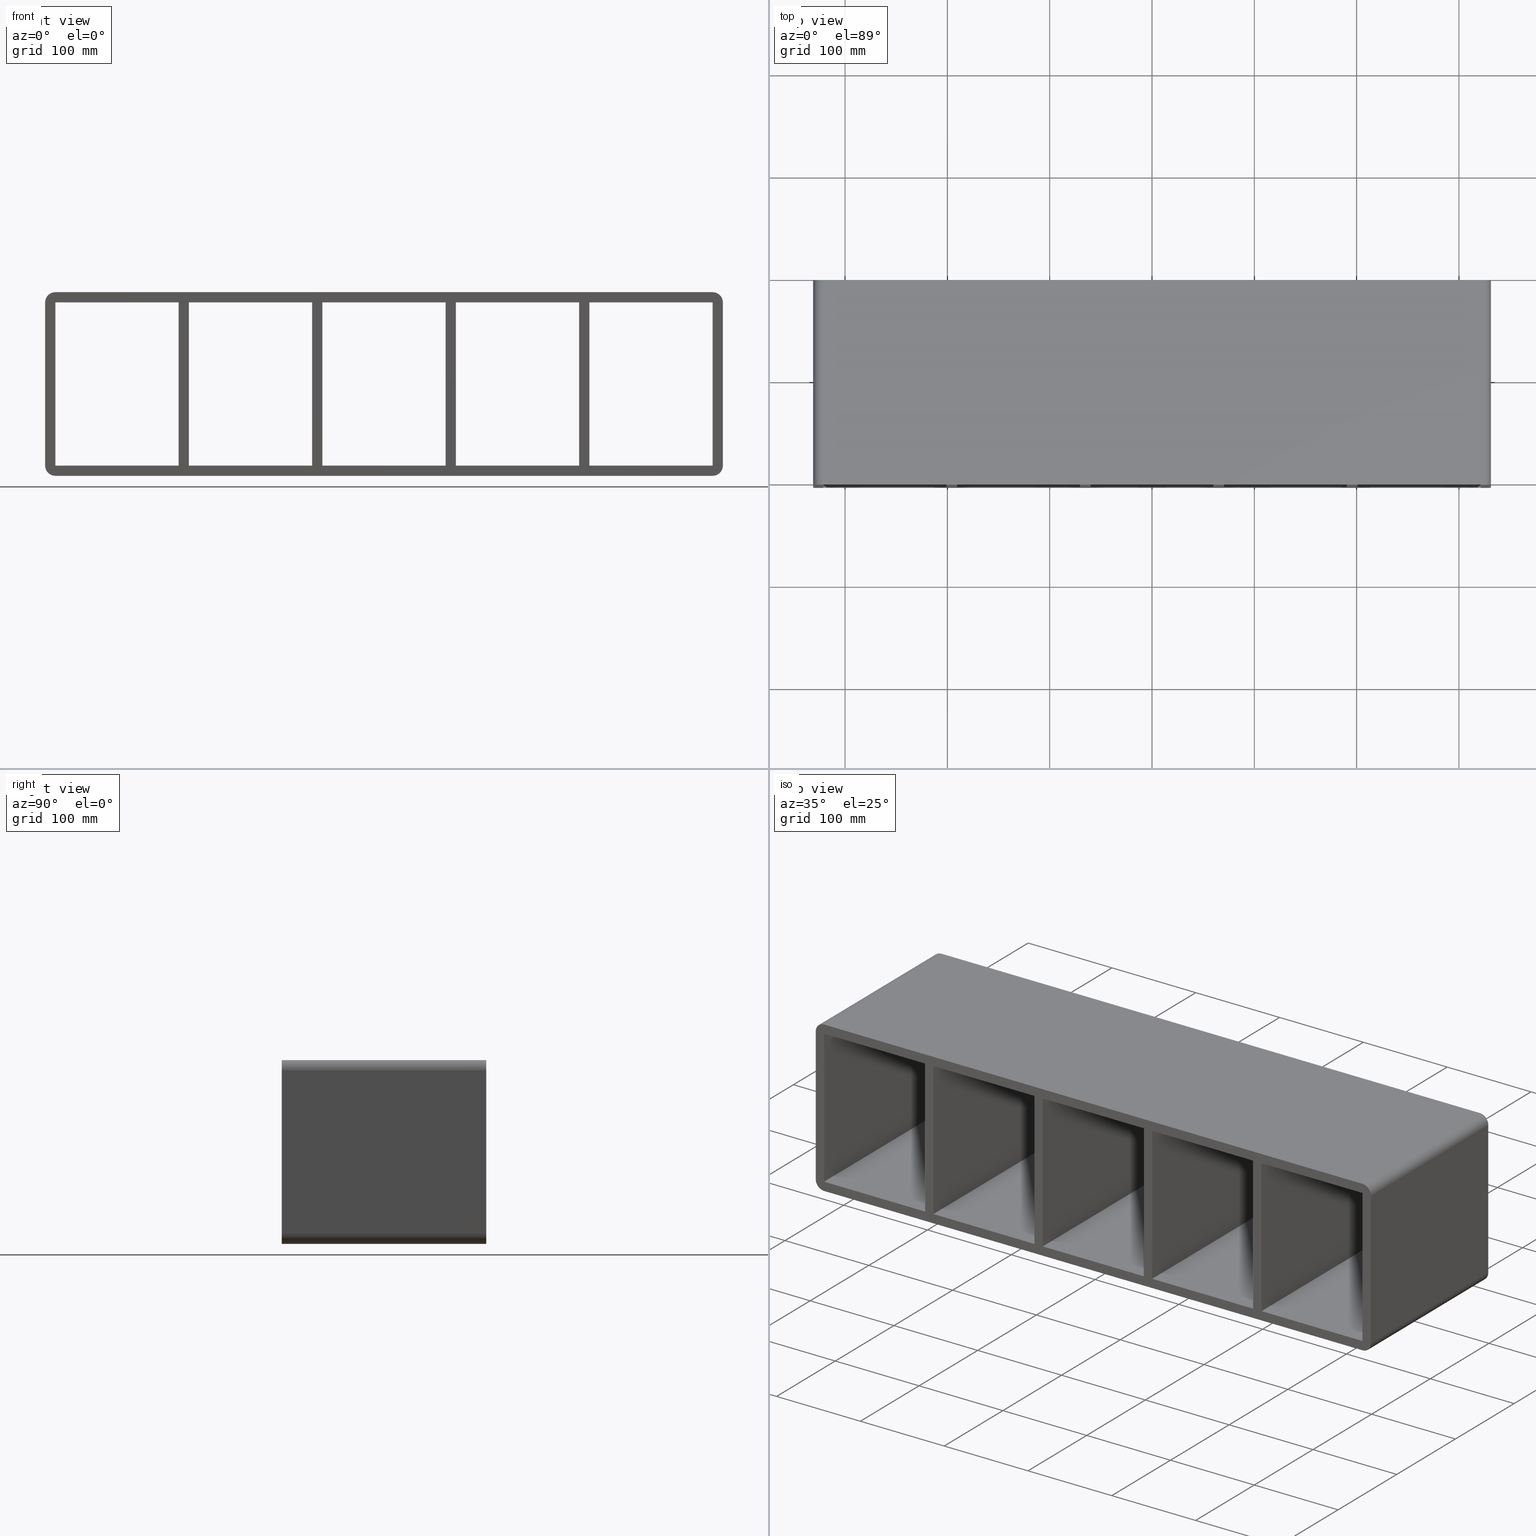
[diagram: canonical four-view strip — front | top / right | iso, engineering-drawing reading convention]
A machine part, canonical four-view strip (front | top / right | iso — engineering-drawing reading convention). The complete STEP part file that produces these views, byte-faithful:
ISO-10303-21;
HEADER;
/****************************************************************
 * Generated by software with PDElib inside                    *
 * PDElib Version v51a, created Wed 11/30/2011                  *
 * ITI Transcendata (http://www.transcendata.com/)              *
 ****************************************************************/
FILE_DESCRIPTION((''),'2;1');
FILE_NAME('C:\\RoxtecConfigurator\\CreatedFiles\\STEP\\SBTB4X5.stp','2013-02-26T13:24:52',(''),(''),'Autodesk Inventor 2013','Autodesk Inventor 2013','');
FILE_SCHEMA(('AUTOMOTIVE_DESIGN { 1 0 10303 214 1 1 1 1 }'));
ENDSEC;
DATA;
#5=APPLICATION_CONTEXT('automotive design');
#6=APPLICATION_PROTOCOL_DEFINITION('International Standard','automotive_design',2001,#5);
#7=PRODUCT_CONTEXT('',#5,'mechanical');
#8=PRODUCT('roxtec S_SF_G','roxtec S_SF_G',$,(#7));
#9=PRODUCT_RELATED_PRODUCT_CATEGORY('part',$,(#8));
#10=PRODUCT_DEFINITION_FORMATION('',$,#8);
#11=PRODUCT_DEFINITION_CONTEXT('part definition',#5,'design');
#12=PRODUCT_DEFINITION('',$,#10,#11);
#18=(NAMED_UNIT(*)PLANE_ANGLE_UNIT()SI_UNIT($,.RADIAN.));
#19=DIMENSIONAL_EXPONENTS(0.0,0.0,0.0,0.0,0.0,0.0,0.0);
#20=PLANE_ANGLE_MEASURE_WITH_UNIT(PLANE_ANGLE_MEASURE(0.0174532925),#18);
#24=(CONVERSION_BASED_UNIT('DEGREE',#20)NAMED_UNIT(#19)PLANE_ANGLE_UNIT());
#28=(NAMED_UNIT(*)SI_UNIT($,.STERADIAN.)SOLID_ANGLE_UNIT());
#32=(LENGTH_UNIT()NAMED_UNIT(*)SI_UNIT(.MILLI.,.METRE.));
#34=UNCERTAINTY_MEASURE_WITH_UNIT(LENGTH_MEASURE(0.01),#32,'DISTANCE_ACCURACY_VALUE','');
#36=(GEOMETRIC_REPRESENTATION_CONTEXT(3)GLOBAL_UNCERTAINTY_ASSIGNED_CONTEXT((#34))GLOBAL_UNIT_ASSIGNED_CONTEXT((#24,#28,#32))REPRESENTATION_CONTEXT('None','None'));
#37=AXIS2_PLACEMENT_3D('',#38,#39,#40);
#38=CARTESIAN_POINT('',(0.0,0.0,0.0));
#39=DIRECTION('',(0.0,0.0,1.0));
#40=DIRECTION('',(1.0,0.0,0.0));
#41=SHAPE_REPRESENTATION('',(#37),#36);
#42=PRODUCT_DEFINITION_SHAPE('','',#12);
#43=SHAPE_DEFINITION_REPRESENTATION(#42,#41);
#49=(NAMED_UNIT(*)PLANE_ANGLE_UNIT()SI_UNIT($,.RADIAN.));
#50=DIMENSIONAL_EXPONENTS(0.0,0.0,0.0,0.0,0.0,0.0,0.0);
#51=PLANE_ANGLE_MEASURE_WITH_UNIT(PLANE_ANGLE_MEASURE(0.0174532925),#49);
#55=(CONVERSION_BASED_UNIT('DEGREE',#51)NAMED_UNIT(#50)PLANE_ANGLE_UNIT());
#59=(NAMED_UNIT(*)SI_UNIT($,.STERADIAN.)SOLID_ANGLE_UNIT());
#63=(LENGTH_UNIT()NAMED_UNIT(*)SI_UNIT(.MILLI.,.METRE.));
#65=UNCERTAINTY_MEASURE_WITH_UNIT(LENGTH_MEASURE(0.000001),#63,'DISTANCE_ACCURACY_VALUE','');
#67=(GEOMETRIC_REPRESENTATION_CONTEXT(3)GLOBAL_UNCERTAINTY_ASSIGNED_CONTEXT((#65))GLOBAL_UNIT_ASSIGNED_CONTEXT((#55,#59,#63))REPRESENTATION_CONTEXT('','3D'));
#68=CARTESIAN_POINT('',(190.74999999999881,-3.0,-79.750000000000014));
#69=DIRECTION('',(-1.0,0.0,0.0));
#70=DIRECTION('',(0.0,0.0,1.0));
#71=AXIS2_PLACEMENT_3D('',#68,#69,#70);
#72=PLANE('',#71);
#73=CARTESIAN_POINT('',(190.74999999999881,-3.0,-79.750000000000014));
#74=VERTEX_POINT('',#73);
#75=CARTESIAN_POINT('',(190.74999999999881,-3.0,79.750000000000014));
#76=VERTEX_POINT('',#75);
#77=CARTESIAN_POINT('',(190.74999999999881,-3.0,-79.750000000000014));
#78=DIRECTION('',(0.0,0.0,1.0));
#79=VECTOR('',#78,159.50000000000003);
#80=LINE('',#77,#79);
#81=EDGE_CURVE('',#74,#76,#80,.T.);
#82=ORIENTED_EDGE('',*,*,#81,.T.);
#83=CARTESIAN_POINT('',(190.74999999999881,197.0,79.750000000000014));
#84=VERTEX_POINT('',#83);
#85=CARTESIAN_POINT('',(190.74999999999881,196.99999999999997,79.750000000000014));
#86=DIRECTION('',(0.0,-1.0,0.0));
#87=VECTOR('',#86,199.99999999999997);
#88=LINE('',#85,#87);
#89=EDGE_CURVE('',#84,#76,#88,.T.);
#90=ORIENTED_EDGE('',*,*,#89,.F.);
#91=CARTESIAN_POINT('',(190.74999999999881,197.0,-79.750000000000014));
#92=VERTEX_POINT('',#91);
#93=CARTESIAN_POINT('',(190.74999999999881,197.0,-79.750000000000014));
#94=DIRECTION('',(0.0,0.0,1.0));
#95=VECTOR('',#94,159.50000000000003);
#96=LINE('',#93,#95);
#97=EDGE_CURVE('',#92,#84,#96,.T.);
#98=ORIENTED_EDGE('',*,*,#97,.F.);
#99=CARTESIAN_POINT('',(190.74999999999881,-3.0,-79.750000000000014));
#100=DIRECTION('',(0.0,1.0,0.0));
#101=VECTOR('',#100,199.99999999999997);
#102=LINE('',#99,#101);
#103=EDGE_CURVE('',#74,#92,#102,.T.);
#104=ORIENTED_EDGE('',*,*,#103,.F.);
#105=EDGE_LOOP('',(#82,#90,#98,#104));
#106=FACE_OUTER_BOUND('',#105,.T.);
#107=ADVANCED_FACE('',(#106),#72,.T.);
#108=CARTESIAN_POINT('',(200.74999999999278,-3.0,79.750000000000014));
#109=DIRECTION('',(1.0,0.0,0.0));
#110=DIRECTION('',(0.0,0.0,-1.0));
#111=AXIS2_PLACEMENT_3D('',#108,#109,#110);
#112=PLANE('',#111);
#113=CARTESIAN_POINT('',(200.74999999999278,-3.0,79.750000000000014));
#114=VERTEX_POINT('',#113);
#115=CARTESIAN_POINT('',(200.74999999999278,-3.0,-79.749999999971479));
#116=VERTEX_POINT('',#115);
#117=CARTESIAN_POINT('',(200.74999999999278,-3.0,79.750000000000014));
#118=DIRECTION('',(0.0,0.0,-1.0));
#119=VECTOR('',#118,159.49999999997149);
#120=LINE('',#117,#119);
#121=EDGE_CURVE('',#114,#116,#120,.T.);
#122=ORIENTED_EDGE('',*,*,#121,.T.);
#123=CARTESIAN_POINT('',(200.74999999999278,197.0,-79.749999999971493));
#124=VERTEX_POINT('',#123);
#125=CARTESIAN_POINT('',(200.74999999999278,196.99999999999997,-79.750000000000014));
#126=DIRECTION('',(0.0,-1.0,0.0));
#127=VECTOR('',#126,199.99999999999997);
#128=LINE('',#125,#127);
#129=EDGE_CURVE('',#124,#116,#128,.T.);
#130=ORIENTED_EDGE('',*,*,#129,.F.);
#131=CARTESIAN_POINT('',(200.74999999999278,197.0,79.750000000000014));
#132=VERTEX_POINT('',#131);
#133=CARTESIAN_POINT('',(200.74999999999278,197.0,79.750000000000014));
#134=DIRECTION('',(0.0,0.0,-1.0));
#135=VECTOR('',#134,159.49999999997149);
#136=LINE('',#133,#135);
#137=EDGE_CURVE('',#132,#124,#136,.T.);
#138=ORIENTED_EDGE('',*,*,#137,.F.);
#139=CARTESIAN_POINT('',(200.74999999999278,-3.0,79.750000000000014));
#140=DIRECTION('',(0.0,1.0,0.0));
#141=VECTOR('',#140,199.99999999999997);
#142=LINE('',#139,#141);
#143=EDGE_CURVE('',#114,#132,#142,.T.);
#144=ORIENTED_EDGE('',*,*,#143,.F.);
#145=EDGE_LOOP('',(#122,#130,#138,#144));
#146=FACE_OUTER_BOUND('',#145,.T.);
#147=ADVANCED_FACE('',(#146),#112,.T.);
#148=CARTESIAN_POINT('',(60.249999999998778,-3.0,-79.750000000000014));
#149=DIRECTION('',(-1.0,0.0,0.0));
#150=DIRECTION('',(0.0,0.0,1.0));
#151=AXIS2_PLACEMENT_3D('',#148,#149,#150);
#152=PLANE('',#151);
#153=CARTESIAN_POINT('',(60.249999999998778,-3.0,-79.750000000000014));
#154=VERTEX_POINT('',#153);
#155=CARTESIAN_POINT('',(60.249999999998778,-3.0,79.750000000000014));
#156=VERTEX_POINT('',#155);
#157=CARTESIAN_POINT('',(60.249999999998778,-3.0,-79.750000000000014));
#158=DIRECTION('',(0.0,0.0,1.0));
#159=VECTOR('',#158,159.50000000000003);
#160=LINE('',#157,#159);
#161=EDGE_CURVE('',#154,#156,#160,.T.);
#162=ORIENTED_EDGE('',*,*,#161,.T.);
#163=CARTESIAN_POINT('',(60.249999999998778,197.0,79.750000000000014));
#164=VERTEX_POINT('',#163);
#165=CARTESIAN_POINT('',(60.249999999998778,196.99999999999997,79.750000000000014));
#166=DIRECTION('',(0.0,-1.0,0.0));
#167=VECTOR('',#166,199.99999999999997);
#168=LINE('',#165,#167);
#169=EDGE_CURVE('',#164,#156,#168,.T.);
#170=ORIENTED_EDGE('',*,*,#169,.F.);
#171=CARTESIAN_POINT('',(60.249999999998778,197.0,-79.750000000000014));
#172=VERTEX_POINT('',#171);
#173=CARTESIAN_POINT('',(60.249999999998778,197.0,-79.750000000000014));
#174=DIRECTION('',(0.0,0.0,1.0));
#175=VECTOR('',#174,159.50000000000003);
#176=LINE('',#173,#175);
#177=EDGE_CURVE('',#172,#164,#176,.T.);
#178=ORIENTED_EDGE('',*,*,#177,.F.);
#179=CARTESIAN_POINT('',(60.249999999998778,-3.0,-79.750000000000014));
#180=DIRECTION('',(0.0,1.0,0.0));
#181=VECTOR('',#180,199.99999999999997);
#182=LINE('',#179,#181);
#183=EDGE_CURVE('',#154,#172,#182,.T.);
#184=ORIENTED_EDGE('',*,*,#183,.F.);
#185=EDGE_LOOP('',(#162,#170,#178,#184));
#186=FACE_OUTER_BOUND('',#185,.T.);
#187=ADVANCED_FACE('',(#186),#152,.T.);
#188=CARTESIAN_POINT('',(70.249999999992738,-3.0,79.750000000000014));
#189=DIRECTION('',(1.0,0.0,0.0));
#190=DIRECTION('',(0.0,0.0,-1.0));
#191=AXIS2_PLACEMENT_3D('',#188,#189,#190);
#192=PLANE('',#191);
#193=CARTESIAN_POINT('',(70.249999999992738,-3.0,79.750000000000014));
#194=VERTEX_POINT('',#193);
#195=CARTESIAN_POINT('',(70.249999999992738,-3.0,-79.749999999971479));
#196=VERTEX_POINT('',#195);
#197=CARTESIAN_POINT('',(70.249999999992738,-3.0,79.750000000000014));
#198=DIRECTION('',(0.0,0.0,-1.0));
#199=VECTOR('',#198,159.49999999997149);
#200=LINE('',#197,#199);
#201=EDGE_CURVE('',#194,#196,#200,.T.);
#202=ORIENTED_EDGE('',*,*,#201,.T.);
#203=CARTESIAN_POINT('',(70.249999999992738,197.0,-79.749999999971493));
#204=VERTEX_POINT('',#203);
#205=CARTESIAN_POINT('',(70.249999999992738,196.99999999999997,-79.750000000000014));
#206=DIRECTION('',(0.0,-1.0,0.0));
#207=VECTOR('',#206,199.99999999999997);
#208=LINE('',#205,#207);
#209=EDGE_CURVE('',#204,#196,#208,.T.);
#210=ORIENTED_EDGE('',*,*,#209,.F.);
#211=CARTESIAN_POINT('',(70.249999999992738,197.0,79.750000000000014));
#212=VERTEX_POINT('',#211);
#213=CARTESIAN_POINT('',(70.249999999992738,197.0,79.750000000000014));
#214=DIRECTION('',(0.0,0.0,-1.0));
#215=VECTOR('',#214,159.49999999997149);
#216=LINE('',#213,#215);
#217=EDGE_CURVE('',#212,#204,#216,.T.);
#218=ORIENTED_EDGE('',*,*,#217,.F.);
#219=CARTESIAN_POINT('',(70.249999999992738,-3.0,79.750000000000014));
#220=DIRECTION('',(0.0,1.0,0.0));
#221=VECTOR('',#220,199.99999999999997);
#222=LINE('',#219,#221);
#223=EDGE_CURVE('',#194,#212,#222,.T.);
#224=ORIENTED_EDGE('',*,*,#223,.F.);
#225=EDGE_LOOP('',(#202,#210,#218,#224));
#226=FACE_OUTER_BOUND('',#225,.T.);
#227=ADVANCED_FACE('',(#226),#192,.T.);
#228=CARTESIAN_POINT('',(-70.250000000001222,-3.0,-79.750000000000014));
#229=DIRECTION('',(-1.0,0.0,0.0));
#230=DIRECTION('',(0.0,0.0,1.0));
#231=AXIS2_PLACEMENT_3D('',#228,#229,#230);
#232=PLANE('',#231);
#233=CARTESIAN_POINT('',(-70.250000000001222,-3.0,-79.750000000000014));
#234=VERTEX_POINT('',#233);
#235=CARTESIAN_POINT('',(-70.250000000001222,-3.0,79.750000000000014));
#236=VERTEX_POINT('',#235);
#237=CARTESIAN_POINT('',(-70.250000000001222,-3.0,-79.750000000000014));
#238=DIRECTION('',(0.0,0.0,1.0));
#239=VECTOR('',#238,159.50000000000003);
#240=LINE('',#237,#239);
#241=EDGE_CURVE('',#234,#236,#240,.T.);
#242=ORIENTED_EDGE('',*,*,#241,.T.);
#243=CARTESIAN_POINT('',(-70.250000000001222,197.0,79.750000000000014));
#244=VERTEX_POINT('',#243);
#245=CARTESIAN_POINT('',(-70.250000000001208,196.99999999999997,79.750000000000014));
#246=DIRECTION('',(0.0,-1.0,0.0));
#247=VECTOR('',#246,199.99999999999997);
#248=LINE('',#245,#247);
#249=EDGE_CURVE('',#244,#236,#248,.T.);
#250=ORIENTED_EDGE('',*,*,#249,.F.);
#251=CARTESIAN_POINT('',(-70.250000000001222,197.0,-79.750000000000014));
#252=VERTEX_POINT('',#251);
#253=CARTESIAN_POINT('',(-70.250000000001222,197.0,-79.750000000000014));
#254=DIRECTION('',(0.0,0.0,1.0));
#255=VECTOR('',#254,159.50000000000003);
#256=LINE('',#253,#255);
#257=EDGE_CURVE('',#252,#244,#256,.T.);
#258=ORIENTED_EDGE('',*,*,#257,.F.);
#259=CARTESIAN_POINT('',(-70.250000000001208,-3.0,-79.750000000000014));
#260=DIRECTION('',(0.0,1.0,0.0));
#261=VECTOR('',#260,199.99999999999997);
#262=LINE('',#259,#261);
#263=EDGE_CURVE('',#234,#252,#262,.T.);
#264=ORIENTED_EDGE('',*,*,#263,.F.);
#265=EDGE_LOOP('',(#242,#250,#258,#264));
#266=FACE_OUTER_BOUND('',#265,.T.);
#267=ADVANCED_FACE('',(#266),#232,.T.);
#268=CARTESIAN_POINT('',(-60.250000000007269,-3.0,79.750000000000014));
#269=DIRECTION('',(1.0,0.0,0.0));
#270=DIRECTION('',(0.0,0.0,-1.0));
#271=AXIS2_PLACEMENT_3D('',#268,#269,#270);
#272=PLANE('',#271);
#273=CARTESIAN_POINT('',(-60.250000000007269,-3.0,79.750000000000014));
#274=VERTEX_POINT('',#273);
#275=CARTESIAN_POINT('',(-60.250000000007269,-3.0,-79.749999999971479));
#276=VERTEX_POINT('',#275);
#277=CARTESIAN_POINT('',(-60.250000000007269,-3.0,79.750000000000014));
#278=DIRECTION('',(0.0,0.0,-1.0));
#279=VECTOR('',#278,159.49999999997149);
#280=LINE('',#277,#279);
#281=EDGE_CURVE('',#274,#276,#280,.T.);
#282=ORIENTED_EDGE('',*,*,#281,.T.);
#283=CARTESIAN_POINT('',(-60.250000000007269,197.0,-79.749999999971493));
#284=VERTEX_POINT('',#283);
#285=CARTESIAN_POINT('',(-60.25000000000729,196.99999999999997,-79.750000000000014));
#286=DIRECTION('',(0.0,-1.0,0.0));
#287=VECTOR('',#286,199.99999999999997);
#288=LINE('',#285,#287);
#289=EDGE_CURVE('',#284,#276,#288,.T.);
#290=ORIENTED_EDGE('',*,*,#289,.F.);
#291=CARTESIAN_POINT('',(-60.250000000007269,197.0,79.750000000000014));
#292=VERTEX_POINT('',#291);
#293=CARTESIAN_POINT('',(-60.250000000007269,197.0,79.750000000000014));
#294=DIRECTION('',(0.0,0.0,-1.0));
#295=VECTOR('',#294,159.49999999997149);
#296=LINE('',#293,#295);
#297=EDGE_CURVE('',#292,#284,#296,.T.);
#298=ORIENTED_EDGE('',*,*,#297,.F.);
#299=CARTESIAN_POINT('',(-60.25000000000729,-3.0,79.750000000000014));
#300=DIRECTION('',(0.0,1.0,0.0));
#301=VECTOR('',#300,199.99999999999997);
#302=LINE('',#299,#301);
#303=EDGE_CURVE('',#274,#292,#302,.T.);
#304=ORIENTED_EDGE('',*,*,#303,.F.);
#305=EDGE_LOOP('',(#282,#290,#298,#304));
#306=FACE_OUTER_BOUND('',#305,.T.);
#307=ADVANCED_FACE('',(#306),#272,.T.);
#308=CARTESIAN_POINT('',(321.25,0.0,-79.750000000000014));
#309=DIRECTION('',(0.0,0.0,-1.0));
#310=DIRECTION('',(-1.0,0.0,0.0));
#311=AXIS2_PLACEMENT_3D('',#308,#309,#310);
#312=PLANE('',#311);
#313=ORIENTED_EDGE('',*,*,#263,.T.);
#314=CARTESIAN_POINT('',(-190.75000000000728,197.0,-79.749999999971493));
#315=VERTEX_POINT('',#314);
#316=CARTESIAN_POINT('',(-190.75000000000728,197.0,-79.750000000000014));
#317=DIRECTION('',(1.0,0.0,0.0));
#318=VECTOR('',#317,120.50000000000605);
#319=LINE('',#316,#318);
#320=EDGE_CURVE('',#315,#252,#319,.T.);
#321=ORIENTED_EDGE('',*,*,#320,.F.);
#322=CARTESIAN_POINT('',(-190.75000000000728,-3.0,-79.749999999971479));
#323=VERTEX_POINT('',#322);
#324=CARTESIAN_POINT('',(-190.75000000000728,196.99999999999997,-79.750000000000014));
#325=DIRECTION('',(0.0,-1.0,0.0));
#326=VECTOR('',#325,199.99999999999997);
#327=LINE('',#324,#326);
#328=EDGE_CURVE('',#315,#323,#327,.T.);
#329=ORIENTED_EDGE('',*,*,#328,.T.);
#330=CARTESIAN_POINT('',(-70.250000000001222,-3.0,-79.750000000000014));
#331=DIRECTION('',(-1.0,0.0,0.0));
#332=VECTOR('',#331,120.50000000000605);
#333=LINE('',#330,#332);
#334=EDGE_CURVE('',#234,#323,#333,.T.);
#335=ORIENTED_EDGE('',*,*,#334,.F.);
#336=EDGE_LOOP('',(#313,#321,#329,#335));
#337=FACE_OUTER_BOUND('',#336,.T.);
#338=ADVANCED_FACE('',(#337),#312,.F.);
#339=CARTESIAN_POINT('',(321.25,0.0,-79.750000000000014));
#340=DIRECTION('',(0.0,0.0,-1.0));
#341=DIRECTION('',(-1.0,0.0,0.0));
#342=AXIS2_PLACEMENT_3D('',#339,#340,#341);
#343=PLANE('',#342);
#344=ORIENTED_EDGE('',*,*,#183,.T.);
#345=CARTESIAN_POINT('',(-60.250000000007276,197.0,-79.750000000000014));
#346=DIRECTION('',(1.0,0.0,0.0));
#347=VECTOR('',#346,120.50000000000605);
#348=LINE('',#345,#347);
#349=EDGE_CURVE('',#284,#172,#348,.T.);
#350=ORIENTED_EDGE('',*,*,#349,.F.);
#351=ORIENTED_EDGE('',*,*,#289,.T.);
#352=CARTESIAN_POINT('',(60.249999999998778,-3.0,-79.750000000000014));
#353=DIRECTION('',(-1.0,0.0,0.0));
#354=VECTOR('',#353,120.50000000000605);
#355=LINE('',#352,#354);
#356=EDGE_CURVE('',#154,#276,#355,.T.);
#357=ORIENTED_EDGE('',*,*,#356,.F.);
#358=EDGE_LOOP('',(#344,#350,#351,#357));
#359=FACE_OUTER_BOUND('',#358,.T.);
#360=ADVANCED_FACE('',(#359),#343,.F.);
#361=CARTESIAN_POINT('',(321.25,0.0,-79.750000000000014));
#362=DIRECTION('',(0.0,0.0,-1.0));
#363=DIRECTION('',(-1.0,0.0,0.0));
#364=AXIS2_PLACEMENT_3D('',#361,#362,#363);
#365=PLANE('',#364);
#366=ORIENTED_EDGE('',*,*,#103,.T.);
#367=CARTESIAN_POINT('',(70.249999999992738,197.0,-79.750000000000014));
#368=DIRECTION('',(1.0,0.0,0.0));
#369=VECTOR('',#368,120.50000000000607);
#370=LINE('',#367,#369);
#371=EDGE_CURVE('',#204,#92,#370,.T.);
#372=ORIENTED_EDGE('',*,*,#371,.F.);
#373=ORIENTED_EDGE('',*,*,#209,.T.);
#374=CARTESIAN_POINT('',(190.74999999999881,-3.0,-79.750000000000014));
#375=DIRECTION('',(-1.0,0.0,0.0));
#376=VECTOR('',#375,120.50000000000607);
#377=LINE('',#374,#376);
#378=EDGE_CURVE('',#74,#196,#377,.T.);
#379=ORIENTED_EDGE('',*,*,#378,.F.);
#380=EDGE_LOOP('',(#366,#372,#373,#379));
#381=FACE_OUTER_BOUND('',#380,.T.);
#382=ADVANCED_FACE('',(#381),#365,.F.);
#383=CARTESIAN_POINT('',(321.25,0.0,-79.750000000000014));
#384=DIRECTION('',(0.0,0.0,-1.0));
#385=DIRECTION('',(-1.0,0.0,0.0));
#386=AXIS2_PLACEMENT_3D('',#383,#384,#385);
#387=PLANE('',#386);
#388=ORIENTED_EDGE('',*,*,#129,.T.);
#389=CARTESIAN_POINT('',(321.25,-3.0,-79.750000000000014));
#390=VERTEX_POINT('',#389);
#391=CARTESIAN_POINT('',(321.25,-3.0,-79.750000000000014));
#392=DIRECTION('',(-1.0,0.0,0.0));
#393=VECTOR('',#392,120.50000000000722);
#394=LINE('',#391,#393);
#395=EDGE_CURVE('',#390,#116,#394,.T.);
#396=ORIENTED_EDGE('',*,*,#395,.F.);
#397=CARTESIAN_POINT('',(321.25,197.0,-79.750000000000014));
#398=VERTEX_POINT('',#397);
#399=CARTESIAN_POINT('',(321.25,197.0,-79.750000000000014));
#400=DIRECTION('',(0.0,-1.0,0.0));
#401=VECTOR('',#400,200.0);
#402=LINE('',#399,#401);
#403=EDGE_CURVE('',#398,#390,#402,.T.);
#404=ORIENTED_EDGE('',*,*,#403,.F.);
#405=CARTESIAN_POINT('',(200.74999999999278,197.0,-79.750000000000014));
#406=DIRECTION('',(1.0,0.0,0.0));
#407=VECTOR('',#406,120.50000000000722);
#408=LINE('',#405,#407);
#409=EDGE_CURVE('',#124,#398,#408,.T.);
#410=ORIENTED_EDGE('',*,*,#409,.F.);
#411=EDGE_LOOP('',(#388,#396,#404,#410));
#412=FACE_OUTER_BOUND('',#411,.T.);
#413=ADVANCED_FACE('',(#412),#387,.F.);
#414=CARTESIAN_POINT('',(-321.25,0.0,79.750000000000014));
#415=DIRECTION('',(0.0,0.0,1.0));
#416=DIRECTION('',(1.0,0.0,0.0));
#417=AXIS2_PLACEMENT_3D('',#414,#415,#416);
#418=PLANE('',#417);
#419=ORIENTED_EDGE('',*,*,#249,.T.);
#420=CARTESIAN_POINT('',(-190.75000000000728,-3.0,79.750000000000014));
#421=VERTEX_POINT('',#420);
#422=CARTESIAN_POINT('',(-190.75000000000728,-3.0,79.750000000000014));
#423=DIRECTION('',(1.0,0.0,0.0));
#424=VECTOR('',#423,120.50000000000605);
#425=LINE('',#422,#424);
#426=EDGE_CURVE('',#421,#236,#425,.T.);
#427=ORIENTED_EDGE('',*,*,#426,.F.);
#428=CARTESIAN_POINT('',(-190.75000000000728,197.0,79.750000000000014));
#429=VERTEX_POINT('',#428);
#430=CARTESIAN_POINT('',(-190.75000000000728,-3.0,79.750000000000014));
#431=DIRECTION('',(0.0,1.0,0.0));
#432=VECTOR('',#431,199.99999999999997);
#433=LINE('',#430,#432);
#434=EDGE_CURVE('',#421,#429,#433,.T.);
#435=ORIENTED_EDGE('',*,*,#434,.T.);
#436=CARTESIAN_POINT('',(-70.250000000001222,197.0,79.750000000000014));
#437=DIRECTION('',(-1.0,0.0,0.0));
#438=VECTOR('',#437,120.50000000000605);
#439=LINE('',#436,#438);
#440=EDGE_CURVE('',#244,#429,#439,.T.);
#441=ORIENTED_EDGE('',*,*,#440,.F.);
#442=EDGE_LOOP('',(#419,#427,#435,#441));
#443=FACE_OUTER_BOUND('',#442,.T.);
#444=ADVANCED_FACE('',(#443),#418,.F.);
#445=CARTESIAN_POINT('',(-321.25,0.0,79.750000000000014));
#446=DIRECTION('',(0.0,0.0,1.0));
#447=DIRECTION('',(1.0,0.0,0.0));
#448=AXIS2_PLACEMENT_3D('',#445,#446,#447);
#449=PLANE('',#448);
#450=ORIENTED_EDGE('',*,*,#169,.T.);
#451=CARTESIAN_POINT('',(-60.250000000007276,-3.0,79.750000000000014));
#452=DIRECTION('',(1.0,0.0,0.0));
#453=VECTOR('',#452,120.50000000000605);
#454=LINE('',#451,#453);
#455=EDGE_CURVE('',#274,#156,#454,.T.);
#456=ORIENTED_EDGE('',*,*,#455,.F.);
#457=ORIENTED_EDGE('',*,*,#303,.T.);
#458=CARTESIAN_POINT('',(60.249999999998778,197.0,79.750000000000014));
#459=DIRECTION('',(-1.0,0.0,0.0));
#460=VECTOR('',#459,120.50000000000605);
#461=LINE('',#458,#460);
#462=EDGE_CURVE('',#164,#292,#461,.T.);
#463=ORIENTED_EDGE('',*,*,#462,.F.);
#464=EDGE_LOOP('',(#450,#456,#457,#463));
#465=FACE_OUTER_BOUND('',#464,.T.);
#466=ADVANCED_FACE('',(#465),#449,.F.);
#467=CARTESIAN_POINT('',(-321.25,0.0,79.750000000000014));
#468=DIRECTION('',(0.0,0.0,1.0));
#469=DIRECTION('',(1.0,0.0,0.0));
#470=AXIS2_PLACEMENT_3D('',#467,#468,#469);
#471=PLANE('',#470);
#472=ORIENTED_EDGE('',*,*,#143,.T.);
#473=CARTESIAN_POINT('',(321.25,197.0,79.750000000000014));
#474=VERTEX_POINT('',#473);
#475=CARTESIAN_POINT('',(321.25,197.0,79.750000000000014));
#476=DIRECTION('',(-1.0,0.0,0.0));
#477=VECTOR('',#476,120.50000000000722);
#478=LINE('',#475,#477);
#479=EDGE_CURVE('',#474,#132,#478,.T.);
#480=ORIENTED_EDGE('',*,*,#479,.F.);
#481=CARTESIAN_POINT('',(321.25,-3.0,79.750000000000014));
#482=VERTEX_POINT('',#481);
#483=CARTESIAN_POINT('',(321.25,-3.0,79.750000000000014));
#484=DIRECTION('',(0.0,1.0,0.0));
#485=VECTOR('',#484,200.0);
#486=LINE('',#483,#485);
#487=EDGE_CURVE('',#482,#474,#486,.T.);
#488=ORIENTED_EDGE('',*,*,#487,.F.);
#489=CARTESIAN_POINT('',(200.74999999999278,-3.0,79.750000000000014));
#490=DIRECTION('',(1.0,0.0,0.0));
#491=VECTOR('',#490,120.50000000000722);
#492=LINE('',#489,#491);
#493=EDGE_CURVE('',#114,#482,#492,.T.);
#494=ORIENTED_EDGE('',*,*,#493,.F.);
#495=EDGE_LOOP('',(#472,#480,#488,#494));
#496=FACE_OUTER_BOUND('',#495,.T.);
#497=ADVANCED_FACE('',(#496),#471,.F.);
#498=CARTESIAN_POINT('',(-321.25,0.0,79.750000000000014));
#499=DIRECTION('',(0.0,0.0,1.0));
#500=DIRECTION('',(1.0,0.0,0.0));
#501=AXIS2_PLACEMENT_3D('',#498,#499,#500);
#502=PLANE('',#501);
#503=ORIENTED_EDGE('',*,*,#89,.T.);
#504=CARTESIAN_POINT('',(70.249999999992724,-3.0,79.750000000000014));
#505=DIRECTION('',(1.0,0.0,0.0));
#506=VECTOR('',#505,120.50000000000608);
#507=LINE('',#504,#506);
#508=EDGE_CURVE('',#194,#76,#507,.T.);
#509=ORIENTED_EDGE('',*,*,#508,.F.);
#510=ORIENTED_EDGE('',*,*,#223,.T.);
#511=CARTESIAN_POINT('',(190.74999999999881,197.0,79.750000000000014));
#512=DIRECTION('',(-1.0,0.0,0.0));
#513=VECTOR('',#512,120.50000000000608);
#514=LINE('',#511,#513);
#515=EDGE_CURVE('',#84,#212,#514,.T.);
#516=ORIENTED_EDGE('',*,*,#515,.F.);
#517=EDGE_LOOP('',(#503,#509,#510,#516));
#518=FACE_OUTER_BOUND('',#517,.T.);
#519=ADVANCED_FACE('',(#518),#502,.F.);
#520=CARTESIAN_POINT('',(-200.75000000000125,-3.0,-79.750000000000014));
#521=DIRECTION('',(-1.0,0.0,0.0));
#522=DIRECTION('',(0.0,0.0,1.0));
#523=AXIS2_PLACEMENT_3D('',#520,#521,#522);
#524=PLANE('',#523);
#525=CARTESIAN_POINT('',(-200.75000000000125,-3.0,-79.750000000000014));
#526=VERTEX_POINT('',#525);
#527=CARTESIAN_POINT('',(-200.75000000000125,-3.0,79.750000000000014));
#528=VERTEX_POINT('',#527);
#529=CARTESIAN_POINT('',(-200.75000000000125,-3.0,-79.750000000000014));
#530=DIRECTION('',(0.0,0.0,1.0));
#531=VECTOR('',#530,159.50000000000003);
#532=LINE('',#529,#531);
#533=EDGE_CURVE('',#526,#528,#532,.T.);
#534=ORIENTED_EDGE('',*,*,#533,.T.);
#535=CARTESIAN_POINT('',(-200.75000000000125,197.0,79.750000000000014));
#536=VERTEX_POINT('',#535);
#537=CARTESIAN_POINT('',(-200.75000000000125,196.99999999999997,79.750000000000014));
#538=DIRECTION('',(0.0,-1.0,0.0));
#539=VECTOR('',#538,199.99999999999997);
#540=LINE('',#537,#539);
#541=EDGE_CURVE('',#536,#528,#540,.T.);
#542=ORIENTED_EDGE('',*,*,#541,.F.);
#543=CARTESIAN_POINT('',(-200.75000000000125,197.0,-79.750000000000014));
#544=VERTEX_POINT('',#543);
#545=CARTESIAN_POINT('',(-200.75000000000125,197.0,-79.750000000000014));
#546=DIRECTION('',(0.0,0.0,1.0));
#547=VECTOR('',#546,159.50000000000003);
#548=LINE('',#545,#547);
#549=EDGE_CURVE('',#544,#536,#548,.T.);
#550=ORIENTED_EDGE('',*,*,#549,.F.);
#551=CARTESIAN_POINT('',(-200.75000000000125,-3.0,-79.750000000000014));
#552=DIRECTION('',(0.0,1.0,0.0));
#553=VECTOR('',#552,199.99999999999997);
#554=LINE('',#551,#553);
#555=EDGE_CURVE('',#526,#544,#554,.T.);
#556=ORIENTED_EDGE('',*,*,#555,.F.);
#557=EDGE_LOOP('',(#534,#542,#550,#556));
#558=FACE_OUTER_BOUND('',#557,.T.);
#559=ADVANCED_FACE('',(#558),#524,.T.);
#560=CARTESIAN_POINT('',(-190.75000000000728,-3.0,79.750000000000014));
#561=DIRECTION('',(1.0,0.0,0.0));
#562=DIRECTION('',(0.0,0.0,-1.0));
#563=AXIS2_PLACEMENT_3D('',#560,#561,#562);
#564=PLANE('',#563);
#565=CARTESIAN_POINT('',(-190.75000000000728,-3.0,79.750000000000014));
#566=DIRECTION('',(0.0,0.0,-1.0));
#567=VECTOR('',#566,159.49999999997149);
#568=LINE('',#565,#567);
#569=EDGE_CURVE('',#421,#323,#568,.T.);
#570=ORIENTED_EDGE('',*,*,#569,.T.);
#571=ORIENTED_EDGE('',*,*,#328,.F.);
#572=CARTESIAN_POINT('',(-190.75000000000728,197.0,79.750000000000014));
#573=DIRECTION('',(0.0,0.0,-1.0));
#574=VECTOR('',#573,159.49999999997149);
#575=LINE('',#572,#574);
#576=EDGE_CURVE('',#429,#315,#575,.T.);
#577=ORIENTED_EDGE('',*,*,#576,.F.);
#578=ORIENTED_EDGE('',*,*,#434,.F.);
#579=EDGE_LOOP('',(#570,#571,#577,#578));
#580=FACE_OUTER_BOUND('',#579,.T.);
#581=ADVANCED_FACE('',(#580),#564,.T.);
#582=CARTESIAN_POINT('',(321.25,0.0,-79.750000000000014));
#583=DIRECTION('',(0.0,0.0,-1.0));
#584=DIRECTION('',(-1.0,0.0,0.0));
#585=AXIS2_PLACEMENT_3D('',#582,#583,#584);
#586=PLANE('',#585);
#587=ORIENTED_EDGE('',*,*,#555,.T.);
#588=CARTESIAN_POINT('',(-321.25,197.0,-79.750000000000014));
#589=VERTEX_POINT('',#588);
#590=CARTESIAN_POINT('',(-321.25,197.0,-79.750000000000014));
#591=DIRECTION('',(1.0,0.0,0.0));
#592=VECTOR('',#591,120.49999999999875);
#593=LINE('',#590,#592);
#594=EDGE_CURVE('',#589,#544,#593,.T.);
#595=ORIENTED_EDGE('',*,*,#594,.F.);
#596=CARTESIAN_POINT('',(-321.25,-3.0,-79.750000000000014));
#597=VERTEX_POINT('',#596);
#598=CARTESIAN_POINT('',(-321.25,-3.0,-79.750000000000014));
#599=DIRECTION('',(0.0,1.0,0.0));
#600=VECTOR('',#599,200.0);
#601=LINE('',#598,#600);
#602=EDGE_CURVE('',#597,#589,#601,.T.);
#603=ORIENTED_EDGE('',*,*,#602,.F.);
#604=CARTESIAN_POINT('',(-200.75000000000125,-3.0,-79.750000000000014));
#605=DIRECTION('',(-1.0,0.0,0.0));
#606=VECTOR('',#605,120.49999999999875);
#607=LINE('',#604,#606);
#608=EDGE_CURVE('',#526,#597,#607,.T.);
#609=ORIENTED_EDGE('',*,*,#608,.F.);
#610=EDGE_LOOP('',(#587,#595,#603,#609));
#611=FACE_OUTER_BOUND('',#610,.T.);
#612=ADVANCED_FACE('',(#611),#586,.F.);
#613=CARTESIAN_POINT('',(-321.25,0.0,79.750000000000014));
#614=DIRECTION('',(0.0,0.0,1.0));
#615=DIRECTION('',(1.0,0.0,0.0));
#616=AXIS2_PLACEMENT_3D('',#613,#614,#615);
#617=PLANE('',#616);
#618=ORIENTED_EDGE('',*,*,#541,.T.);
#619=CARTESIAN_POINT('',(-321.25,-3.0,79.750000000000014));
#620=VERTEX_POINT('',#619);
#621=CARTESIAN_POINT('',(-321.25,-3.0,79.750000000000014));
#622=DIRECTION('',(1.0,0.0,0.0));
#623=VECTOR('',#622,120.49999999999875);
#624=LINE('',#621,#623);
#625=EDGE_CURVE('',#620,#528,#624,.T.);
#626=ORIENTED_EDGE('',*,*,#625,.F.);
#627=CARTESIAN_POINT('',(-321.25,197.0,79.750000000000014));
#628=VERTEX_POINT('',#627);
#629=CARTESIAN_POINT('',(-321.25,-3.0,79.750000000000014));
#630=DIRECTION('',(0.0,1.0,0.0));
#631=VECTOR('',#630,200.0);
#632=LINE('',#629,#631);
#633=EDGE_CURVE('',#620,#628,#632,.T.);
#634=ORIENTED_EDGE('',*,*,#633,.T.);
#635=CARTESIAN_POINT('',(-200.75000000000125,197.0,79.750000000000014));
#636=DIRECTION('',(-1.0,0.0,0.0));
#637=VECTOR('',#636,120.49999999999875);
#638=LINE('',#635,#637);
#639=EDGE_CURVE('',#536,#628,#638,.T.);
#640=ORIENTED_EDGE('',*,*,#639,.F.);
#641=EDGE_LOOP('',(#618,#626,#634,#640));
#642=FACE_OUTER_BOUND('',#641,.T.);
#643=ADVANCED_FACE('',(#642),#617,.F.);
#644=CARTESIAN_POINT('',(-321.25,0.0,-79.75));
#645=DIRECTION('',(0.0,1.0,0.0));
#646=DIRECTION('',(-0.707106781186547,0.0,-0.707106781186547));
#647=AXIS2_PLACEMENT_3D('',#644,#645,#646);
#648=CYLINDRICAL_SURFACE('',#647,10.0);
#649=CARTESIAN_POINT('',(-331.25,197.0,-79.75));
#650=VERTEX_POINT('',#649);
#651=CARTESIAN_POINT('',(-321.25,197.0,-89.75));
#652=VERTEX_POINT('',#651);
#653=CARTESIAN_POINT('',(-321.25,197.0,-79.75));
#654=DIRECTION('',(0.0,-1.0,0.0));
#655=DIRECTION('',(-0.707106781186547,0.0,-0.707106781186547));
#656=AXIS2_PLACEMENT_3D('',#653,#654,#655);
#657=CIRCLE('',#656,9.999999999999998);
#658=EDGE_CURVE('',#650,#652,#657,.T.);
#659=ORIENTED_EDGE('',*,*,#658,.T.);
#660=CARTESIAN_POINT('',(-321.25,-3.0,-89.75));
#661=VERTEX_POINT('',#660);
#662=CARTESIAN_POINT('',(-321.25,197.0,-89.75));
#663=DIRECTION('',(0.0,-1.0,0.0));
#664=VECTOR('',#663,200.0);
#665=LINE('',#662,#664);
#666=EDGE_CURVE('',#652,#661,#665,.T.);
#667=ORIENTED_EDGE('',*,*,#666,.T.);
#668=CARTESIAN_POINT('',(-331.25,-3.0,-79.75));
#669=VERTEX_POINT('',#668);
#670=CARTESIAN_POINT('',(-321.25,-3.0,-79.75));
#671=DIRECTION('',(0.0,1.0,0.0));
#672=DIRECTION('',(-0.707106781186547,0.0,-0.707106781186547));
#673=AXIS2_PLACEMENT_3D('',#670,#671,#672);
#674=CIRCLE('',#673,9.999999999999998);
#675=EDGE_CURVE('',#661,#669,#674,.T.);
#676=ORIENTED_EDGE('',*,*,#675,.T.);
#677=CARTESIAN_POINT('',(-331.25,-3.0,-79.75));
#678=DIRECTION('',(0.0,1.0,0.0));
#679=VECTOR('',#678,200.0);
#680=LINE('',#677,#679);
#681=EDGE_CURVE('',#669,#650,#680,.T.);
#682=ORIENTED_EDGE('',*,*,#681,.T.);
#683=EDGE_LOOP('',(#659,#667,#676,#682));
#684=FACE_OUTER_BOUND('',#683,.T.);
#685=ADVANCED_FACE('',(#684),#648,.T.);
#686=CARTESIAN_POINT('',(0.0,-3.0,1.518975E-014));
#687=DIRECTION('',(0.0,1.0,0.0));
#688=DIRECTION('',(0.0,0.0,1.0));
#689=AXIS2_PLACEMENT_3D('',#686,#687,#688);
#690=PLANE('',#689);
#691=ORIENTED_EDGE('',*,*,#675,.F.);
#692=CARTESIAN_POINT('',(321.25,-3.0,-89.75));
#693=VERTEX_POINT('',#692);
#694=CARTESIAN_POINT('',(-321.25,-3.0,-89.75));
#695=DIRECTION('',(1.0,0.0,0.0));
#696=VECTOR('',#695,642.5);
#697=LINE('',#694,#696);
#698=EDGE_CURVE('',#661,#693,#697,.T.);
#699=ORIENTED_EDGE('',*,*,#698,.T.);
#700=CARTESIAN_POINT('',(331.25,-3.0,-79.75));
#701=VERTEX_POINT('',#700);
#702=CARTESIAN_POINT('',(321.25,-3.0,-79.75));
#703=DIRECTION('',(0.0,1.0,0.0));
#704=DIRECTION('',(0.707106781186547,0.0,-0.707106781186547));
#705=AXIS2_PLACEMENT_3D('',#702,#703,#704);
#706=CIRCLE('',#705,9.999999999999998);
#707=EDGE_CURVE('',#701,#693,#706,.T.);
#708=ORIENTED_EDGE('',*,*,#707,.F.);
#709=CARTESIAN_POINT('',(331.25,-3.0,79.750000000000028));
#710=VERTEX_POINT('',#709);
#711=CARTESIAN_POINT('',(331.25,-3.0,-79.75));
#712=DIRECTION('',(0.0,0.0,1.0));
#713=VECTOR('',#712,159.50000000000003);
#714=LINE('',#711,#713);
#715=EDGE_CURVE('',#701,#710,#714,.T.);
#716=ORIENTED_EDGE('',*,*,#715,.T.);
#717=CARTESIAN_POINT('',(321.25,-3.0,89.750000000000028));
#718=VERTEX_POINT('',#717);
#719=CARTESIAN_POINT('',(321.25,-3.0,79.750000000000028));
#720=DIRECTION('',(0.0,1.0,0.0));
#721=DIRECTION('',(0.707106781186547,0.0,0.707106781186547));
#722=AXIS2_PLACEMENT_3D('',#719,#720,#721);
#723=CIRCLE('',#722,9.999999999999998);
#724=EDGE_CURVE('',#718,#710,#723,.T.);
#725=ORIENTED_EDGE('',*,*,#724,.F.);
#726=CARTESIAN_POINT('',(-321.25,-3.0,89.750000000000028));
#727=VERTEX_POINT('',#726);
#728=CARTESIAN_POINT('',(321.25,-3.0,89.750000000000028));
#729=DIRECTION('',(-1.0,0.0,0.0));
#730=VECTOR('',#729,642.5);
#731=LINE('',#728,#730);
#732=EDGE_CURVE('',#718,#727,#731,.T.);
#733=ORIENTED_EDGE('',*,*,#732,.T.);
#734=CARTESIAN_POINT('',(-331.25,-3.0,79.750000000000028));
#735=VERTEX_POINT('',#734);
#736=CARTESIAN_POINT('',(-321.25,-3.0,79.750000000000028));
#737=DIRECTION('',(0.0,1.0,0.0));
#738=DIRECTION('',(-0.707106781186547,0.0,0.707106781186547));
#739=AXIS2_PLACEMENT_3D('',#736,#737,#738);
#740=CIRCLE('',#739,9.999999999999998);
#741=EDGE_CURVE('',#735,#727,#740,.T.);
#742=ORIENTED_EDGE('',*,*,#741,.F.);
#743=CARTESIAN_POINT('',(-331.25,-3.0,79.750000000000028));
#744=DIRECTION('',(0.0,0.0,-1.0));
#745=VECTOR('',#744,159.50000000000003);
#746=LINE('',#743,#745);
#747=EDGE_CURVE('',#735,#669,#746,.T.);
#748=ORIENTED_EDGE('',*,*,#747,.T.);
#749=EDGE_LOOP('',(#691,#699,#708,#716,#725,#733,#742,#748));
#750=FACE_OUTER_BOUND('',#749,.T.);
#751=ORIENTED_EDGE('',*,*,#378,.T.);
#752=ORIENTED_EDGE('',*,*,#201,.F.);
#753=ORIENTED_EDGE('',*,*,#508,.T.);
#754=ORIENTED_EDGE('',*,*,#81,.F.);
#755=EDGE_LOOP('',(#751,#752,#753,#754));
#756=FACE_BOUND('',#755,.T.);
#757=ORIENTED_EDGE('',*,*,#356,.T.);
#758=ORIENTED_EDGE('',*,*,#281,.F.);
#759=ORIENTED_EDGE('',*,*,#455,.T.);
#760=ORIENTED_EDGE('',*,*,#161,.F.);
#761=EDGE_LOOP('',(#757,#758,#759,#760));
#762=FACE_BOUND('',#761,.T.);
#763=ORIENTED_EDGE('',*,*,#334,.T.);
#764=ORIENTED_EDGE('',*,*,#569,.F.);
#765=ORIENTED_EDGE('',*,*,#426,.T.);
#766=ORIENTED_EDGE('',*,*,#241,.F.);
#767=EDGE_LOOP('',(#763,#764,#765,#766));
#768=FACE_BOUND('',#767,.T.);
#769=ORIENTED_EDGE('',*,*,#608,.T.);
#770=CARTESIAN_POINT('',(-321.25,-3.0,-79.750000000000014));
#771=DIRECTION('',(0.0,0.0,1.0));
#772=VECTOR('',#771,159.50000000000006);
#773=LINE('',#770,#772);
#774=EDGE_CURVE('',#597,#620,#773,.T.);
#775=ORIENTED_EDGE('',*,*,#774,.T.);
#776=ORIENTED_EDGE('',*,*,#625,.T.);
#777=ORIENTED_EDGE('',*,*,#533,.F.);
#778=EDGE_LOOP('',(#769,#775,#776,#777));
#779=FACE_BOUND('',#778,.T.);
#780=ORIENTED_EDGE('',*,*,#121,.F.);
#781=ORIENTED_EDGE('',*,*,#493,.T.);
#782=CARTESIAN_POINT('',(321.25,-3.0,79.750000000000014));
#783=DIRECTION('',(0.0,0.0,-1.0));
#784=VECTOR('',#783,159.50000000000003);
#785=LINE('',#782,#784);
#786=EDGE_CURVE('',#482,#390,#785,.T.);
#787=ORIENTED_EDGE('',*,*,#786,.T.);
#788=ORIENTED_EDGE('',*,*,#395,.T.);
#789=EDGE_LOOP('',(#780,#781,#787,#788));
#790=FACE_BOUND('',#789,.T.);
#791=ADVANCED_FACE('',(#750,#756,#762,#768,#779,#790),#690,.F.);
#792=CARTESIAN_POINT('',(331.25,0.0,-89.75));
#793=DIRECTION('',(0.0,0.0,-1.0));
#794=DIRECTION('',(-1.0,0.0,0.0));
#795=AXIS2_PLACEMENT_3D('',#792,#793,#794);
#796=PLANE('',#795);
#797=ORIENTED_EDGE('',*,*,#666,.F.);
#798=CARTESIAN_POINT('',(321.25,197.0,-89.75));
#799=VERTEX_POINT('',#798);
#800=CARTESIAN_POINT('',(321.25,197.0,-89.75));
#801=DIRECTION('',(-1.0,0.0,0.0));
#802=VECTOR('',#801,642.5);
#803=LINE('',#800,#802);
#804=EDGE_CURVE('',#799,#652,#803,.T.);
#805=ORIENTED_EDGE('',*,*,#804,.F.);
#806=CARTESIAN_POINT('',(321.25,-3.0,-89.75));
#807=DIRECTION('',(0.0,1.0,0.0));
#808=VECTOR('',#807,200.0);
#809=LINE('',#806,#808);
#810=EDGE_CURVE('',#693,#799,#809,.T.);
#811=ORIENTED_EDGE('',*,*,#810,.F.);
#812=ORIENTED_EDGE('',*,*,#698,.F.);
#813=EDGE_LOOP('',(#797,#805,#811,#812));
#814=FACE_OUTER_BOUND('',#813,.T.);
#815=ADVANCED_FACE('',(#814),#796,.T.);
#816=CARTESIAN_POINT('',(321.25,0.0,-79.75));
#817=DIRECTION('',(0.0,1.0,0.0));
#818=DIRECTION('',(0.707106781186547,0.0,-0.707106781186547));
#819=AXIS2_PLACEMENT_3D('',#816,#817,#818);
#820=CYLINDRICAL_SURFACE('',#819,10.0);
#821=CARTESIAN_POINT('',(331.25,197.0,-79.75));
#822=VERTEX_POINT('',#821);
#823=CARTESIAN_POINT('',(321.25,197.0,-79.75));
#824=DIRECTION('',(0.0,-1.0,0.0));
#825=DIRECTION('',(0.707106781186547,0.0,-0.707106781186547));
#826=AXIS2_PLACEMENT_3D('',#823,#824,#825);
#827=CIRCLE('',#826,9.999999999999998);
#828=EDGE_CURVE('',#799,#822,#827,.T.);
#829=ORIENTED_EDGE('',*,*,#828,.T.);
#830=CARTESIAN_POINT('',(331.25,197.0,-79.75));
#831=DIRECTION('',(0.0,-1.0,0.0));
#832=VECTOR('',#831,200.0);
#833=LINE('',#830,#832);
#834=EDGE_CURVE('',#822,#701,#833,.T.);
#835=ORIENTED_EDGE('',*,*,#834,.T.);
#836=ORIENTED_EDGE('',*,*,#707,.T.);
#837=ORIENTED_EDGE('',*,*,#810,.T.);
#838=EDGE_LOOP('',(#829,#835,#836,#837));
#839=FACE_OUTER_BOUND('',#838,.T.);
#840=ADVANCED_FACE('',(#839),#820,.T.);
#841=CARTESIAN_POINT('',(321.25,0.0,79.750000000000028));
#842=DIRECTION('',(0.0,-1.0,0.0));
#843=DIRECTION('',(0.707106781186547,0.0,0.707106781186547));
#844=AXIS2_PLACEMENT_3D('',#841,#842,#843);
#845=CYLINDRICAL_SURFACE('',#844,10.0);
#846=ORIENTED_EDGE('',*,*,#724,.T.);
#847=CARTESIAN_POINT('',(331.25,197.0,79.750000000000028));
#848=VERTEX_POINT('',#847);
#849=CARTESIAN_POINT('',(331.25,-3.0,79.750000000000028));
#850=DIRECTION('',(0.0,1.0,0.0));
#851=VECTOR('',#850,200.0);
#852=LINE('',#849,#851);
#853=EDGE_CURVE('',#710,#848,#852,.T.);
#854=ORIENTED_EDGE('',*,*,#853,.T.);
#855=CARTESIAN_POINT('',(321.25,197.0,89.750000000000028));
#856=VERTEX_POINT('',#855);
#857=CARTESIAN_POINT('',(321.25,197.0,79.750000000000028));
#858=DIRECTION('',(0.0,-1.0,0.0));
#859=DIRECTION('',(0.707106781186547,0.0,0.707106781186547));
#860=AXIS2_PLACEMENT_3D('',#857,#858,#859);
#861=CIRCLE('',#860,9.999999999999998);
#862=EDGE_CURVE('',#848,#856,#861,.T.);
#863=ORIENTED_EDGE('',*,*,#862,.T.);
#864=CARTESIAN_POINT('',(321.25,197.0,89.750000000000028));
#865=DIRECTION('',(0.0,-1.0,0.0));
#866=VECTOR('',#865,200.0);
#867=LINE('',#864,#866);
#868=EDGE_CURVE('',#856,#718,#867,.T.);
#869=ORIENTED_EDGE('',*,*,#868,.T.);
#870=EDGE_LOOP('',(#846,#854,#863,#869));
#871=FACE_OUTER_BOUND('',#870,.T.);
#872=ADVANCED_FACE('',(#871),#845,.T.);
#873=CARTESIAN_POINT('',(-331.25,0.0,89.750000000000028));
#874=DIRECTION('',(0.0,0.0,1.0));
#875=DIRECTION('',(1.0,0.0,0.0));
#876=AXIS2_PLACEMENT_3D('',#873,#874,#875);
#877=PLANE('',#876);
#878=ORIENTED_EDGE('',*,*,#868,.F.);
#879=CARTESIAN_POINT('',(-321.25,197.0,89.750000000000028));
#880=VERTEX_POINT('',#879);
#881=CARTESIAN_POINT('',(-321.25,197.0,89.750000000000028));
#882=DIRECTION('',(1.0,0.0,0.0));
#883=VECTOR('',#882,642.5);
#884=LINE('',#881,#883);
#885=EDGE_CURVE('',#880,#856,#884,.T.);
#886=ORIENTED_EDGE('',*,*,#885,.F.);
#887=CARTESIAN_POINT('',(-321.25,-3.0,89.750000000000028));
#888=DIRECTION('',(0.0,1.0,0.0));
#889=VECTOR('',#888,200.0);
#890=LINE('',#887,#889);
#891=EDGE_CURVE('',#727,#880,#890,.T.);
#892=ORIENTED_EDGE('',*,*,#891,.F.);
#893=ORIENTED_EDGE('',*,*,#732,.F.);
#894=EDGE_LOOP('',(#878,#886,#892,#893));
#895=FACE_OUTER_BOUND('',#894,.T.);
#896=ADVANCED_FACE('',(#895),#877,.T.);
#897=CARTESIAN_POINT('',(-321.25,0.0,79.750000000000028));
#898=DIRECTION('',(0.0,1.0,0.0));
#899=DIRECTION('',(-0.707106781186547,0.0,0.707106781186547));
#900=AXIS2_PLACEMENT_3D('',#897,#898,#899);
#901=CYLINDRICAL_SURFACE('',#900,10.0);
#902=CARTESIAN_POINT('',(-331.25,197.0,79.750000000000028));
#903=VERTEX_POINT('',#902);
#904=CARTESIAN_POINT('',(-321.25,197.0,79.750000000000028));
#905=DIRECTION('',(0.0,-1.0,0.0));
#906=DIRECTION('',(-0.707106781186547,0.0,0.707106781186547));
#907=AXIS2_PLACEMENT_3D('',#904,#905,#906);
#908=CIRCLE('',#907,9.999999999999998);
#909=EDGE_CURVE('',#880,#903,#908,.T.);
#910=ORIENTED_EDGE('',*,*,#909,.T.);
#911=CARTESIAN_POINT('',(-331.25,197.0,79.750000000000028));
#912=DIRECTION('',(0.0,-1.0,0.0));
#913=VECTOR('',#912,200.0);
#914=LINE('',#911,#913);
#915=EDGE_CURVE('',#903,#735,#914,.T.);
#916=ORIENTED_EDGE('',*,*,#915,.T.);
#917=ORIENTED_EDGE('',*,*,#741,.T.);
#918=ORIENTED_EDGE('',*,*,#891,.T.);
#919=EDGE_LOOP('',(#910,#916,#917,#918));
#920=FACE_OUTER_BOUND('',#919,.T.);
#921=ADVANCED_FACE('',(#920),#901,.T.);
#922=CARTESIAN_POINT('',(321.25,0.0,79.750000000000014));
#923=DIRECTION('',(1.0,0.0,0.0));
#924=DIRECTION('',(0.0,0.0,-1.0));
#925=AXIS2_PLACEMENT_3D('',#922,#923,#924);
#926=PLANE('',#925);
#927=ORIENTED_EDGE('',*,*,#403,.T.);
#928=ORIENTED_EDGE('',*,*,#786,.F.);
#929=ORIENTED_EDGE('',*,*,#487,.T.);
#930=CARTESIAN_POINT('',(321.25,197.0,-79.750000000000014));
#931=DIRECTION('',(0.0,0.0,1.0));
#932=VECTOR('',#931,159.50000000000003);
#933=LINE('',#930,#932);
#934=EDGE_CURVE('',#398,#474,#933,.T.);
#935=ORIENTED_EDGE('',*,*,#934,.F.);
#936=EDGE_LOOP('',(#927,#928,#929,#935));
#937=FACE_OUTER_BOUND('',#936,.T.);
#938=ADVANCED_FACE('',(#937),#926,.F.);
#939=CARTESIAN_POINT('',(-321.25,0.0,-79.750000000000014));
#940=DIRECTION('',(-1.0,0.0,0.0));
#941=DIRECTION('',(0.0,0.0,1.0));
#942=AXIS2_PLACEMENT_3D('',#939,#940,#941);
#943=PLANE('',#942);
#944=ORIENTED_EDGE('',*,*,#633,.F.);
#945=ORIENTED_EDGE('',*,*,#774,.F.);
#946=ORIENTED_EDGE('',*,*,#602,.T.);
#947=CARTESIAN_POINT('',(-321.25,197.0,79.750000000000028));
#948=DIRECTION('',(0.0,0.0,-1.0));
#949=VECTOR('',#948,159.50000000000006);
#950=LINE('',#947,#949);
#951=EDGE_CURVE('',#628,#589,#950,.T.);
#952=ORIENTED_EDGE('',*,*,#951,.F.);
#953=EDGE_LOOP('',(#944,#945,#946,#952));
#954=FACE_OUTER_BOUND('',#953,.T.);
#955=ADVANCED_FACE('',(#954),#943,.F.);
#956=CARTESIAN_POINT('',(-331.25,0.0,-89.75));
#957=DIRECTION('',(-1.0,0.0,0.0));
#958=DIRECTION('',(0.0,0.0,1.0));
#959=AXIS2_PLACEMENT_3D('',#956,#957,#958);
#960=PLANE('',#959);
#961=ORIENTED_EDGE('',*,*,#681,.F.);
#962=ORIENTED_EDGE('',*,*,#747,.F.);
#963=ORIENTED_EDGE('',*,*,#915,.F.);
#964=CARTESIAN_POINT('',(-331.25,197.0,-79.75));
#965=DIRECTION('',(0.0,0.0,1.0));
#966=VECTOR('',#965,159.50000000000003);
#967=LINE('',#964,#966);
#968=EDGE_CURVE('',#650,#903,#967,.T.);
#969=ORIENTED_EDGE('',*,*,#968,.F.);
#970=EDGE_LOOP('',(#961,#962,#963,#969));
#971=FACE_OUTER_BOUND('',#970,.T.);
#972=ADVANCED_FACE('',(#971),#960,.T.);
#973=CARTESIAN_POINT('',(331.25,0.0,89.750000000000028));
#974=DIRECTION('',(1.0,0.0,0.0));
#975=DIRECTION('',(0.0,0.0,-1.0));
#976=AXIS2_PLACEMENT_3D('',#973,#974,#975);
#977=PLANE('',#976);
#978=ORIENTED_EDGE('',*,*,#834,.F.);
#979=CARTESIAN_POINT('',(331.25,197.0,79.750000000000028));
#980=DIRECTION('',(0.0,0.0,-1.0));
#981=VECTOR('',#980,159.50000000000003);
#982=LINE('',#979,#981);
#983=EDGE_CURVE('',#848,#822,#982,.T.);
#984=ORIENTED_EDGE('',*,*,#983,.F.);
#985=ORIENTED_EDGE('',*,*,#853,.F.);
#986=ORIENTED_EDGE('',*,*,#715,.F.);
#987=EDGE_LOOP('',(#978,#984,#985,#986));
#988=FACE_OUTER_BOUND('',#987,.T.);
#989=ADVANCED_FACE('',(#988),#977,.T.);
#990=CARTESIAN_POINT('',(0.0,197.0,1.518975E-014));
#991=DIRECTION('',(0.0,1.0,0.0));
#992=DIRECTION('',(0.0,0.0,1.0));
#993=AXIS2_PLACEMENT_3D('',#990,#991,#992);
#994=PLANE('',#993);
#995=ORIENTED_EDGE('',*,*,#658,.F.);
#996=ORIENTED_EDGE('',*,*,#968,.T.);
#997=ORIENTED_EDGE('',*,*,#909,.F.);
#998=ORIENTED_EDGE('',*,*,#885,.T.);
#999=ORIENTED_EDGE('',*,*,#862,.F.);
#1000=ORIENTED_EDGE('',*,*,#983,.T.);
#1001=ORIENTED_EDGE('',*,*,#828,.F.);
#1002=ORIENTED_EDGE('',*,*,#804,.T.);
#1003=EDGE_LOOP('',(#995,#996,#997,#998,#999,#1000,#1001,#1002));
#1004=FACE_OUTER_BOUND('',#1003,.T.);
#1005=ORIENTED_EDGE('',*,*,#409,.T.);
#1006=ORIENTED_EDGE('',*,*,#934,.T.);
#1007=ORIENTED_EDGE('',*,*,#479,.T.);
#1008=ORIENTED_EDGE('',*,*,#137,.T.);
#1009=EDGE_LOOP('',(#1005,#1006,#1007,#1008));
#1010=FACE_BOUND('',#1009,.T.);
#1011=ORIENTED_EDGE('',*,*,#97,.T.);
#1012=ORIENTED_EDGE('',*,*,#515,.T.);
#1013=ORIENTED_EDGE('',*,*,#217,.T.);
#1014=ORIENTED_EDGE('',*,*,#371,.T.);
#1015=EDGE_LOOP('',(#1011,#1012,#1013,#1014));
#1016=FACE_BOUND('',#1015,.T.);
#1017=ORIENTED_EDGE('',*,*,#177,.T.);
#1018=ORIENTED_EDGE('',*,*,#462,.T.);
#1019=ORIENTED_EDGE('',*,*,#297,.T.);
#1020=ORIENTED_EDGE('',*,*,#349,.T.);
#1021=EDGE_LOOP('',(#1017,#1018,#1019,#1020));
#1022=FACE_BOUND('',#1021,.T.);
#1023=ORIENTED_EDGE('',*,*,#257,.T.);
#1024=ORIENTED_EDGE('',*,*,#440,.T.);
#1025=ORIENTED_EDGE('',*,*,#576,.T.);
#1026=ORIENTED_EDGE('',*,*,#320,.T.);
#1027=EDGE_LOOP('',(#1023,#1024,#1025,#1026));
#1028=FACE_BOUND('',#1027,.T.);
#1029=ORIENTED_EDGE('',*,*,#549,.T.);
#1030=ORIENTED_EDGE('',*,*,#639,.T.);
#1031=ORIENTED_EDGE('',*,*,#951,.T.);
#1032=ORIENTED_EDGE('',*,*,#594,.T.);
#1033=EDGE_LOOP('',(#1029,#1030,#1031,#1032));
#1034=FACE_BOUND('',#1033,.T.);
#1035=ADVANCED_FACE('',(#1004,#1010,#1016,#1022,#1028,#1034),#994,.T.);
#1036=CLOSED_SHELL('',(#107,#147,#187,#227,#267,#307,#338,#360,#382,#413,#444,#466,#497,#519,#559,#581,#612,#643,#685,#791,#815,#840,#872,#896,#921,#938,#955,#972,#989,#1035));
#1037=MANIFOLD_SOLID_BREP('Solid1',#1036);
#1038=COLOUR_RGB('Silicon Nitride - Polished',0.800000011920929,0.796078443527222,0.701960802078247);
#1039=FILL_AREA_STYLE_COLOUR('Silicon Nitride - Polished',#1038);
#1040=FILL_AREA_STYLE('Silicon Nitride - Polished',(#1039));
#1041=SURFACE_STYLE_FILL_AREA(#1040);
#1042=SURFACE_SIDE_STYLE('Silicon Nitride - Polished',(#1041));
#1043=SURFACE_STYLE_USAGE(.BOTH.,#1042);
#1044=PRESENTATION_STYLE_ASSIGNMENT((#1043));
#1045=STYLED_ITEM('',(#1044),#1037);
#1046=MECHANICAL_DESIGN_GEOMETRIC_PRESENTATION_REPRESENTATION('',(#1045),#36);
#1047=ADVANCED_BREP_SHAPE_REPRESENTATION('ABSR',(#1037),#36);
#1048=SHAPE_REPRESENTATION_RELATIONSHIP('SRR','None',#1047,#41);
ENDSEC;
END-ISO-10303-21;
